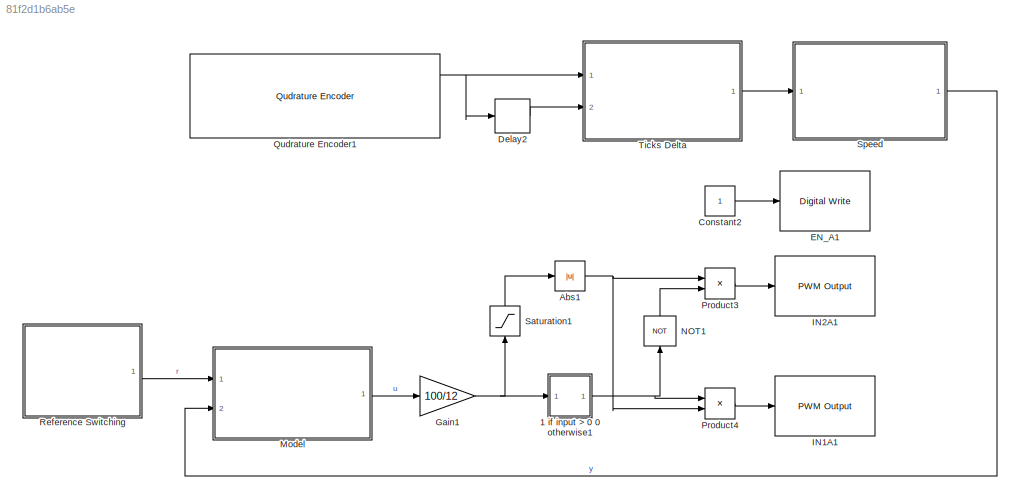
MODEL slx_81f2d1b6ab5e
KIND model
CONFIG AbsTol = auto
CONFIG EnableMultiTasking = on
CONFIG FixedStep = Ts
CONFIG MaxStep = auto
CONFIG MinStep = auto
CONFIG RelTol = 1e-3
CONFIG SampleTimeConstraint = Unconstrained
CONFIG SolverName = FixedStepAuto
CONFIG StartTime = 0.0
CONFIG StopTime = 20
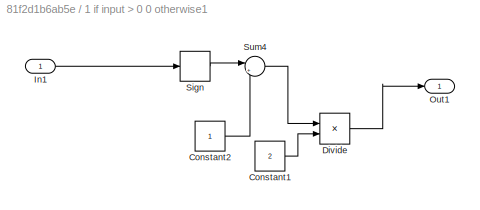
BLOCK [SubSystem] 1 if input > 0 0 otherwise1
  Ports = [1, 1]
  RequestExecContextInheritance = off
BLOCK [Constant] 1 if input > 0 0 otherwise1/Constant1
  Value = 2
BLOCK [Constant] 1 if input > 0 0 otherwise1/Constant2
BLOCK [Product] 1 if input > 0 0 otherwise1/Divide
  Inputs = */
  Ports = [2, 1]
BLOCK [Inport] 1 if input > 0 0 otherwise1/In1
BLOCK [Outport] 1 if input > 0 0 otherwise1/Out1
BLOCK [Signum] 1 if input > 0 0 otherwise1/Sign
BLOCK [Sum] 1 if input > 0 0 otherwise1/Sum4
  Inputs = |++
  Ports = [2, 1]
BLOCK [Abs] Abs1
  SaturateOnIntegerOverflow = off
BLOCK [Constant] Constant2
BLOCK [Delay] Delay2
  DelayLength = 1
  InitialCondition = 0
  InputPortMap = u0
  Ports = [1, 1]
BLOCK [Reference] EN_A1  REF=mbedblockslib/Digital Write
  Ports = [1]
  SourceBlock = mbedblockslib/Digital Write
  SourceProductBaseCode = MICROBIT,NUCLEO,STMICRODIS
  SourceType = mbed.DigitalWrite
BLOCK [Gain] Gain1
  Gain = 100/12
BLOCK [Reference] IN1A1  REF=mbedblockslib/PWM Output
  Ports = [1]
  SourceBlock = mbedblockslib/PWM Output
  SourceProductBaseCode = MICROBIT,NUCLEO,STMICRODIS
  SourceType = mbed.PWMOutput
BLOCK [Reference] IN2A1  REF=mbedblockslib/PWM Output
  Ports = [1]
  SourceBlock = mbedblockslib/PWM Output
  SourceProductBaseCode = MICROBIT,NUCLEO,STMICRODIS
  SourceType = mbed.PWMOutput
BLOCK [ModelReference] Model
  ModelNameDialog = Controller_Observer_Model.slx
  ModelReferenceVersion = 1.6
  Ports = [2, 1]
BLOCK [Logic] NOT1
  AllPortsSameDT = off
  IconShape = distinctive
  NameLocation = right
  Operator = NOT
  OutDataTypeStr = boolean
  Ports = [1, 1]
BLOCK [Product] Product3
  Ports = [2, 1]
BLOCK [Product] Product4
  Ports = [2, 1]
BLOCK [Reference] Qudrature Encoder1  REF=stm_qeplib/Qudrature Encoder
  Ports = [0, 3]
  SourceBlock = stm_qeplib/Qudrature Encoder
  SourceType = soc_stm_QEP
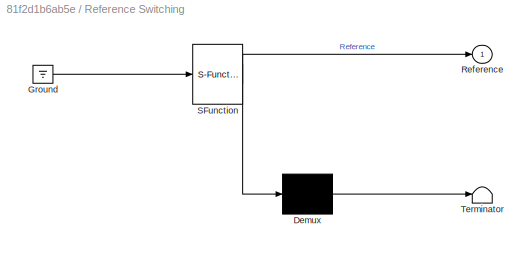
BLOCK [SubSystem] Reference Switching
  ErrorFcn = Stateflow.Translate.translate
  PermitHierarchicalResolution = ExplicitOnly
  Ports = [0, 1]
  RequestExecContextInheritance = off
  SFBlockType = Chart
  TreatAsAtomicUnit = on
BLOCK [Demux] Reference Switching/ Demux 
  Outputs = 1
  Ports = [1, 1]
BLOCK [Ground] Reference Switching/ Ground 
BLOCK [S-Function] Reference Switching/ SFunction 
  EnableBusSupport = on
  FunctionName = sf_sfun
  PortCounts = [1 2]
  Ports = [1, 2]
  SFcnIsStateOwnerBlock = off
  SFunctionDeploymentMode = off
  Tag = Stateflow S-Function 3
BLOCK [Terminator] Reference Switching/ Terminator 
BLOCK [Outport] Reference Switching/Reference
BLOCK [Saturate] Saturation1
  LowerLimit = -100
  NameLocation = right
  UpperLimit = 100
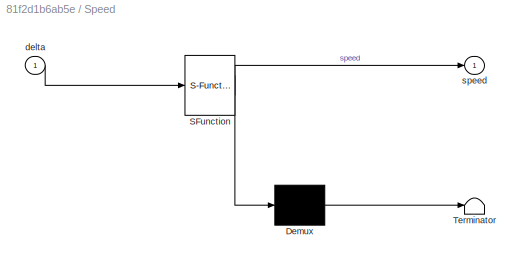
BLOCK [SubSystem] Speed
  ErrorFcn = Stateflow.Translate.translate
  PermitHierarchicalResolution = ExplicitOnly
  Ports = [1, 1]
  RequestExecContextInheritance = off
  SFBlockType = MATLAB Function
  TreatAsAtomicUnit = on
BLOCK [Demux] Speed/ Demux 
  Outputs = 1
  Ports = [1, 1]
BLOCK [S-Function] Speed/ SFunction 
  EnableBusSupport = on
  FunctionName = sf_sfun
  Parameters = Ts
  PortCounts = [1 2]
  Ports = [1, 2]
  SFcnIsStateOwnerBlock = off
  SFunctionDeploymentMode = off
  Tag = Stateflow S-Function 7
BLOCK [Terminator] Speed/ Terminator 
BLOCK [Inport] Speed/delta
BLOCK [Outport] Speed/speed
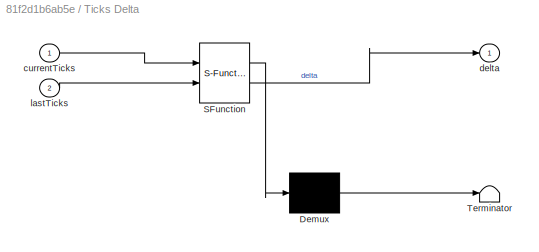
BLOCK [SubSystem] Ticks Delta
  ErrorFcn = Stateflow.Translate.translate
  PermitHierarchicalResolution = ExplicitOnly
  Ports = [2, 1]
  RequestExecContextInheritance = off
  SFBlockType = MATLAB Function
  TreatAsAtomicUnit = on
BLOCK [Demux] Ticks Delta/ Demux 
  Outputs = 1
  Ports = [1, 1]
BLOCK [S-Function] Ticks Delta/ SFunction 
  EnableBusSupport = on
  FunctionName = sf_sfun
  Parameters = Ts
  PortCounts = [2 2]
  Ports = [2, 2]
  SFcnIsStateOwnerBlock = off
  SFunctionDeploymentMode = off
  Tag = Stateflow S-Function 8
BLOCK [Terminator] Ticks Delta/ Terminator 
BLOCK [Inport] Ticks Delta/currentTicks
BLOCK [Outport] Ticks Delta/delta
BLOCK [Inport] Ticks Delta/lastTicks
  Port = 2
LINE 1 if input > 0 0 otherwise1/Constant1:1 -> 1 if input > 0 0 otherwise1/Divide:2
LINE 1 if input > 0 0 otherwise1/Constant2:1 -> 1 if input > 0 0 otherwise1/Sum4:2
LINE 1 if input > 0 0 otherwise1/Divide:1 -> 1 if input > 0 0 otherwise1/Out1:1
LINE 1 if input > 0 0 otherwise1/In1:1 -> 1 if input > 0 0 otherwise1/Sign:1
LINE 1 if input > 0 0 otherwise1/Sign:1 -> 1 if input > 0 0 otherwise1/Sum4:1
LINE 1 if input > 0 0 otherwise1/Sum4:1 -> 1 if input > 0 0 otherwise1/Divide:1
NET 1 if input > 0 0 otherwise1:1 -> NOT1:1, Product4:1
NET Abs1:1 -> Product3:1, Product4:2
LINE Constant2:1 -> EN_A1:1
LINE Delay2:1 -> Ticks Delta:2
NET Gain1:1 -> 1 if input > 0 0 otherwise1:1, Saturation1:1
LINE Model:1 -> Gain1:1
LINE NOT1:1 -> Product3:2
LINE Product3:1 -> IN2A1:1
LINE Product4:1 -> IN1A1:1
NET Qudrature Encoder1:1 -> Delay2:1, Ticks Delta:1
LINE Reference Switching:1 -> Model:1
LINE Saturation1:1 -> Abs1:1
LINE Speed:1 -> Model:2
LINE Ticks Delta:1 -> Speed:1
note: NET lines group one-source signal fan-out (src -> all destinations, sorted); 1:1 wires keep LINE
CHART Reference Switching states=6 transitions=7
  STATE_LABEL 'S1\nReference=0;'
  STATE_LABEL 'S2\nReference=80;'
  STATE_LABEL 'S3\nReference=125;'
  STATE_LABEL 's7\nReference=-125;'
  STATE_LABEL 's6\nReference=-80;'
  STATE_LABEL 's5\nReference=0;'
CHART Speed states=1 transitions=1
  STATE_LABEL 'eML_blk_kernel()'
  STATE_LABEL 'SCRIPT:\nfunction speed = getSpeedByDelta(delta,Ts)\n\nspeed = delta*60/(3591.84*Ts);\n\nend\n'
CHART Ticks Delta states=1 transitions=1
  STATE_LABEL 'eML_blk_kernel()'
  STATE_LABEL 'SCRIPT:\nfunction delta = getTicksDelta(currentTicks,lastTicks,Ts)\n\ncurrentTicks = double(currentTicks);\nlastTicks = double(lastTicks);\n\nif abs(currentTicks-lastTicks) <= ceil(8400*Ts) \n\t delta = currentTicks-lastTicks;\nelse\nif lastTicks>currentTicks\n\t delta = currentTicks+2^16-1-lastTicks;\nelse\n\t delta = currentTicks-2^16+1-lastTicks;\n\tend\nend\n\nend\n'
CHART  states=0 transitions=0
CHART  states=0 transitions=0
CHART  states=0 transitions=0
